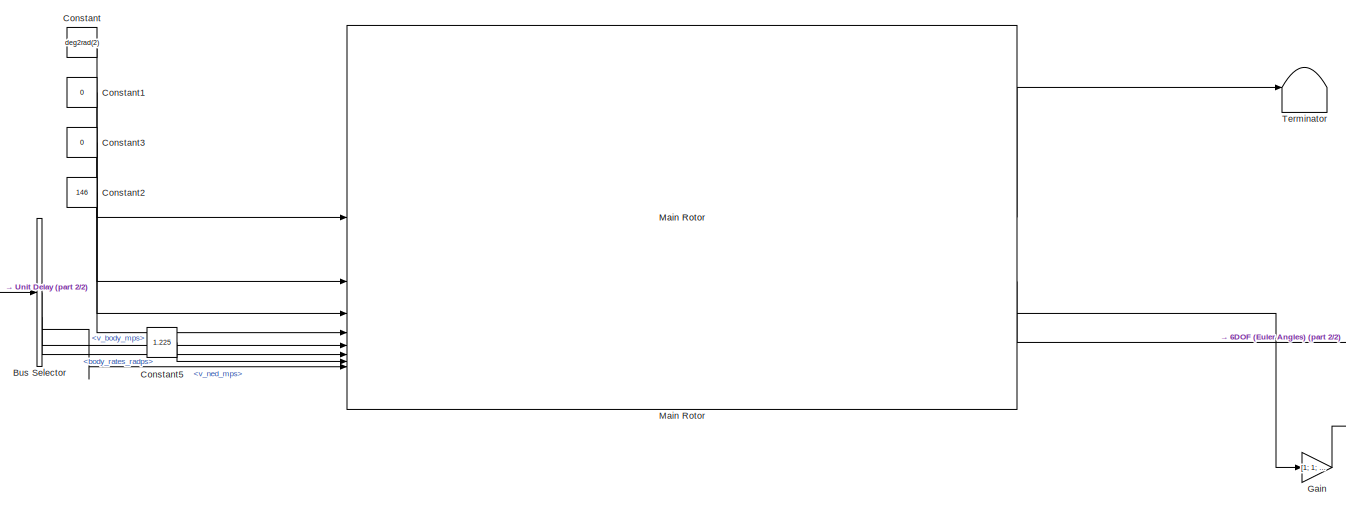
[diagram: root canvas - part 1/2, top left region]
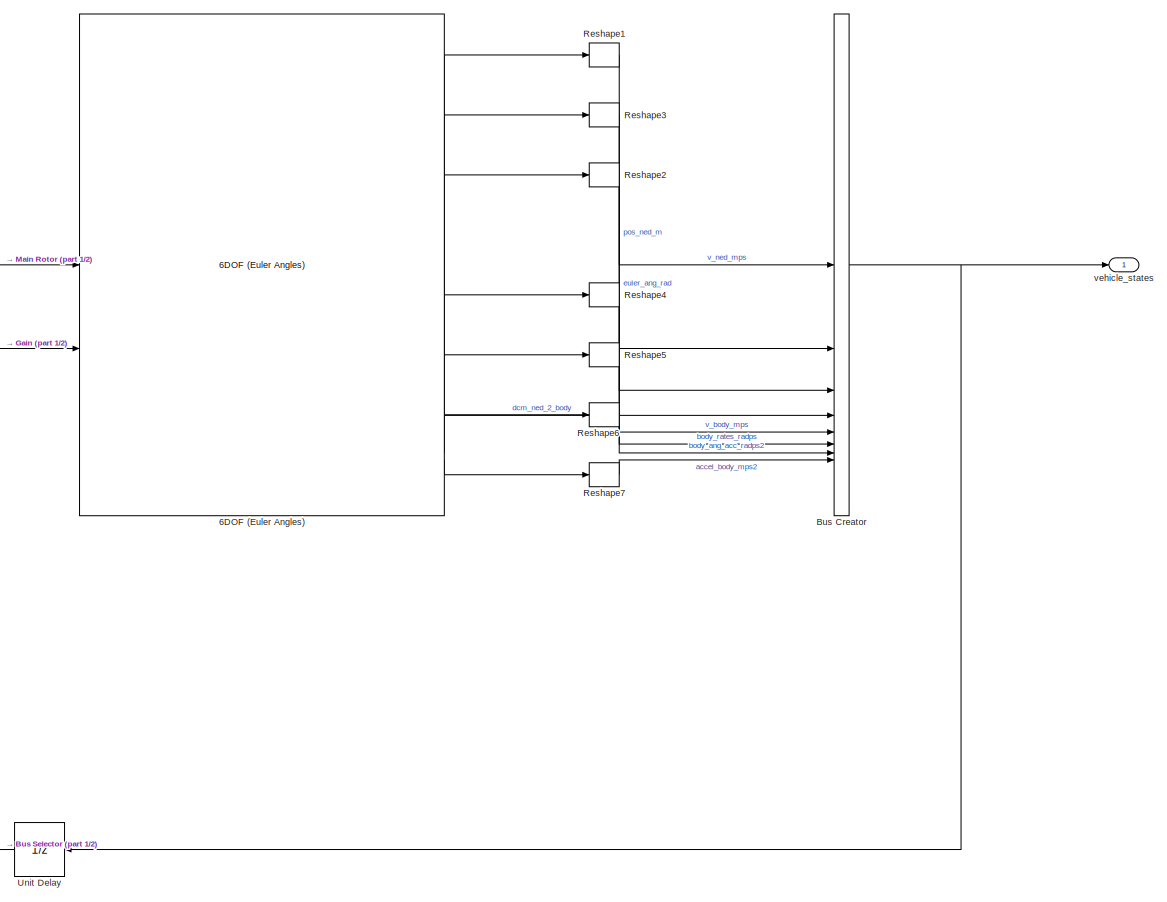
[diagram: root canvas - part 2/2, right side, full height]
MODEL slx_1c85d9d9b2a1
KIND model
CONFIG AbsTol = auto
CONFIG EnableMultiTasking = off
CONFIG FixedStep = auto
CONFIG MaxStep = auto
CONFIG MinStep = auto
CONFIG RelTol = 1e-3
CONFIG SampleTimeConstraint = Unconstrained
CONFIG SolverName = VariableStepAuto
CONFIG StartTime = 0.0
CONFIG StopTime = 100
BLOCK [Reference] 6DOF (Euler Angles)  REF=shared6dof/6DOF (Euler Angles)
  LibrarySourceBlock = aerolib6dof2/6DOF (Euler Angles)
  SourceBlock = shared6dof/6DOF (Euler Angles)
  SourceType = 6DOF EoM (Body Axis)
BLOCK [BusCreator] Bus Creator
  DisplayOption = bar
  InheritFromInputs = on
  Inputs = v_ned_mps,pos_ned_m,euler_ang_rad,dcm_ned_2_body,v_body_mps,body_rates_radps,body_ang_acc_radps2,accel_body_mps2
  NonVirtualBus = on
  OutDataTypeStr = Bus: vehicle_state_bus
BLOCK [BusSelector] Bus Selector
  OutputSignals = v_body_mps,body_rates_radps,v_ned_mps
BLOCK [Constant] Constant
  Value = deg2rad(2)
BLOCK [Constant] Constant1
  Value = 0
BLOCK [Constant] Constant2
  Value = 146
BLOCK [Constant] Constant3
  Value = 0
BLOCK [Constant] Constant5
  Value = 1.225
BLOCK [Gain] Gain
  Gain = [1; 1; 0]
BLOCK [Reference] Main Rotor  REF=main_rotor/Main Rotor  (lib defined in slx_ef042581574e)
  SourceBlock = main_rotor/Main Rotor
BLOCK [Reshape] Reshape1
  OutputDimensionality = Customize
  OutputDimensions = [3, 1]
BLOCK [Reshape] Reshape2
  OutputDimensionality = Customize
  OutputDimensions = [3, 1]
BLOCK [Reshape] Reshape3
  OutputDimensionality = Customize
  OutputDimensions = [3, 1]
BLOCK [Reshape] Reshape4
  OutputDimensionality = Customize
  OutputDimensions = [3, 1]
BLOCK [Reshape] Reshape5
  OutputDimensionality = Customize
  OutputDimensions = [3, 1]
BLOCK [Reshape] Reshape6
  OutputDimensionality = Customize
  OutputDimensions = [3, 1]
BLOCK [Reshape] Reshape7
  OutputDimensionality = Customize
  OutputDimensions = [3, 1]
BLOCK [Terminator] Terminator
BLOCK [UnitDelay] Unit Delay
  HasFrameUpgradeWarning = on
  NameLocation = top
  SampleTime = -1
BLOCK [Outport] vehicle_states
  BusOutputAsStruct = on
  OutDataTypeStr = Bus: vehicle_state_bus
LINE 6DOF (Euler Angles):1 -> Reshape1:1
LINE 6DOF (Euler Angles):2 -> Reshape3:1
LINE 6DOF (Euler Angles):3 -> Reshape2:1
LINE 6DOF (Euler Angles):4 -> Bus Creator:4
LINE 6DOF (Euler Angles):5 -> Reshape4:1
LINE 6DOF (Euler Angles):6 -> Reshape5:1
LINE 6DOF (Euler Angles):7 -> Reshape6:1
LINE 6DOF (Euler Angles):8 -> Reshape7:1
NET Bus Creator:1 -> Unit Delay:1, vehicle_states:1
LINE Bus Selector:1 -> Main Rotor:5
LINE Bus Selector:2 -> Main Rotor:6
LINE Bus Selector:3 -> Main Rotor:8
LINE Constant1:1 -> Main Rotor:2
LINE Constant2:1 -> Main Rotor:4
LINE Constant3:1 -> Main Rotor:3
LINE Constant5:1 -> Main Rotor:7
LINE Constant:1 -> Main Rotor:1
LINE Gain:1 -> 6DOF (Euler Angles):2
LINE Main Rotor:1 -> Terminator:1
LINE Main Rotor:2 -> 6DOF (Euler Angles):1
LINE Main Rotor:3 -> Gain:1
LINE Reshape1:1 -> Bus Creator:1
LINE Reshape2:1 -> Bus Creator:3
LINE Reshape3:1 -> Bus Creator:2
LINE Reshape4:1 -> Bus Creator:5
LINE Reshape5:1 -> Bus Creator:6
LINE Reshape6:1 -> Bus Creator:7
LINE Reshape7:1 -> Bus Creator:8
LINE Unit Delay:1 -> Bus Selector:1
note: NET lines group one-source signal fan-out (src -> all destinations, sorted); 1:1 wires keep LINE
